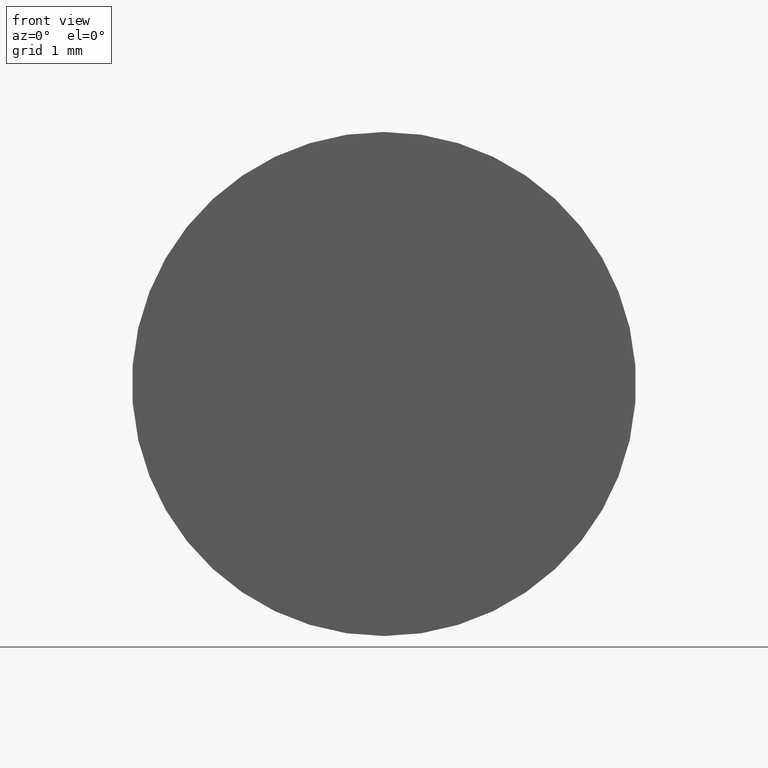
[diagram: clean part render]
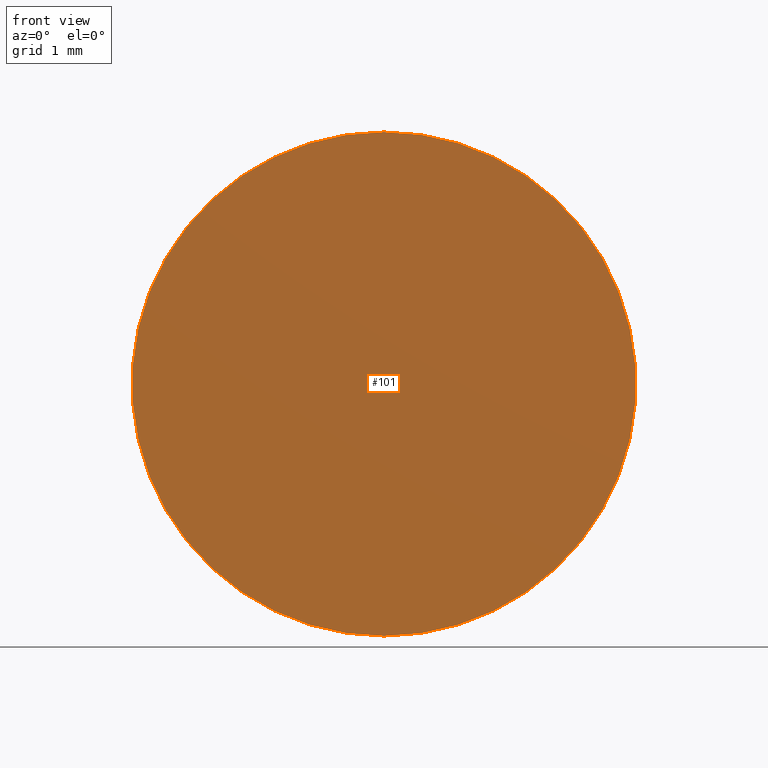
[diagram: same view with one face highlighted and labeled with its STEP entity id]
A machine part, front view. The second image highlights one B-rep face of the part: STEP entity #101.
In plain terms, the highlighted planar face has unit normal (0, -1, 0).
Its self-contained STEP definition (entity closure, byte-faithful):
#10 = DIRECTION ( 'NONE',  ( 0.000000000000000000, -1.000000000000000000, 0.000000000000000000 ) ) ;
#23 = AXIS2_PLACEMENT_3D ( 'NONE', #95, #176, #196 ) ;
#33 = AXIS2_PLACEMENT_3D ( 'NONE', #92, #10, #124 ) ;
#35 = DIRECTION ( 'NONE',  ( -0.000000000000000000, 1.000000000000000000, -0.000000000000000000 ) ) ;
#40 = CARTESIAN_POINT ( 'NONE',  ( 3.673940397442059868E-16, -4.336808689942017736E-16, -3.000000000000000000 ) ) ;
#47 = EDGE_LOOP ( 'NONE', ( #183, #69 ) ) ;
#62 = EDGE_CURVE ( 'NONE', #167, #111, #197, .T. ) ;
#69 = ORIENTED_EDGE ( 'NONE', *, *, #62, .F. ) ;
#70 = DIRECTION ( 'NONE',  ( 0.000000000000000000, 0.000000000000000000, 1.000000000000000000 ) ) ;
#73 = AXIS2_PLACEMENT_3D ( 'NONE', #171, #35, #70 ) ;
#92 = CARTESIAN_POINT ( 'NONE',  ( 0.000000000000000000, -1.836970198721030181E-16, 0.000000000000000000 ) ) ;
#95 = CARTESIAN_POINT ( 'NONE',  ( 0.000000000000000000, -4.336808689942017736E-16, 0.000000000000000000 ) ) ;
#101 = ADVANCED_FACE ( 'NONE', ( #104 ), #157, .T. ) ;
#104 = FACE_OUTER_BOUND ( 'NONE', #47, .T. ) ;
#111 = VERTEX_POINT ( 'NONE', #139 ) ;
#114 = EDGE_CURVE ( 'NONE', #111, #167, #117, .T. ) ;
#117 = CIRCLE ( 'NONE', #23, 3.000000000000000000 ) ;
#124 = DIRECTION ( 'NONE',  ( 0.000000000000000000, -0.000000000000000000, -1.000000000000000000 ) ) ;
#139 = CARTESIAN_POINT ( 'NONE',  ( 0.000000000000000000, -4.336808689942017736E-16, 3.000000000000000000 ) ) ;
#157 = PLANE ( 'NONE',  #33 ) ;
#167 = VERTEX_POINT ( 'NONE', #40 ) ;
#171 = CARTESIAN_POINT ( 'NONE',  ( 0.000000000000000000, -4.336808689942017736E-16, 0.000000000000000000 ) ) ;
#176 = DIRECTION ( 'NONE',  ( -0.000000000000000000, 1.000000000000000000, -0.000000000000000000 ) ) ;
#183 = ORIENTED_EDGE ( 'NONE', *, *, #114, .F. ) ;
#196 = DIRECTION ( 'NONE',  ( 0.000000000000000000, 0.000000000000000000, 1.000000000000000000 ) ) ;
#197 = CIRCLE ( 'NONE', #73, 3.000000000000000000 ) ;